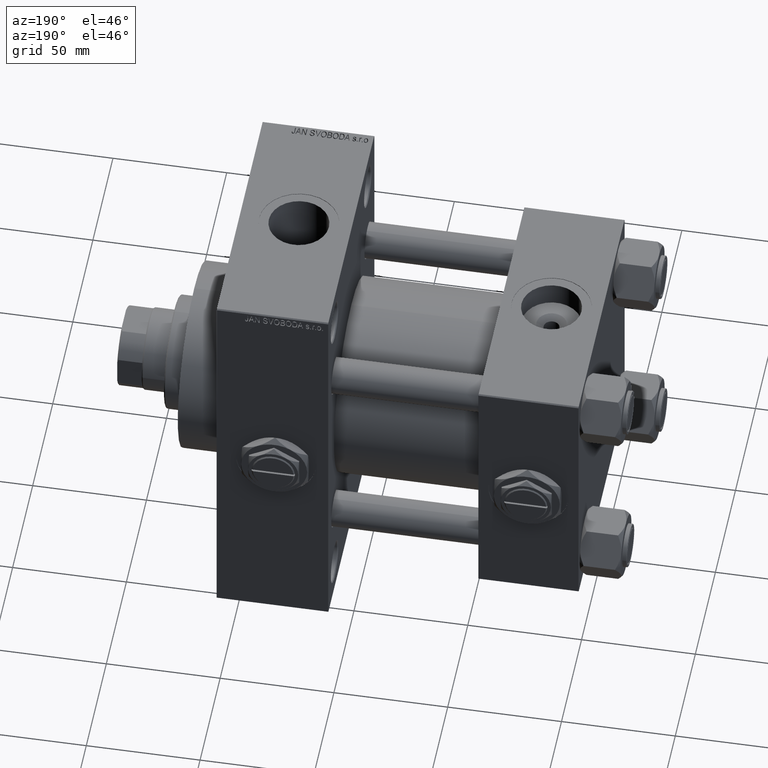
[diagram: clean part render]
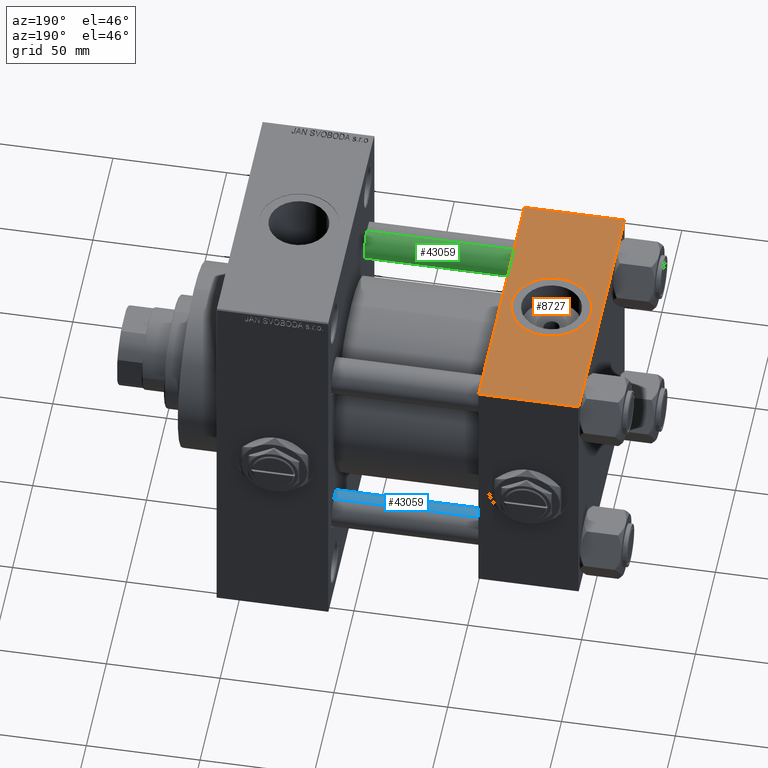
[diagram: same view with three faces highlighted in distinct colors, each labeled with its STEP entity id]
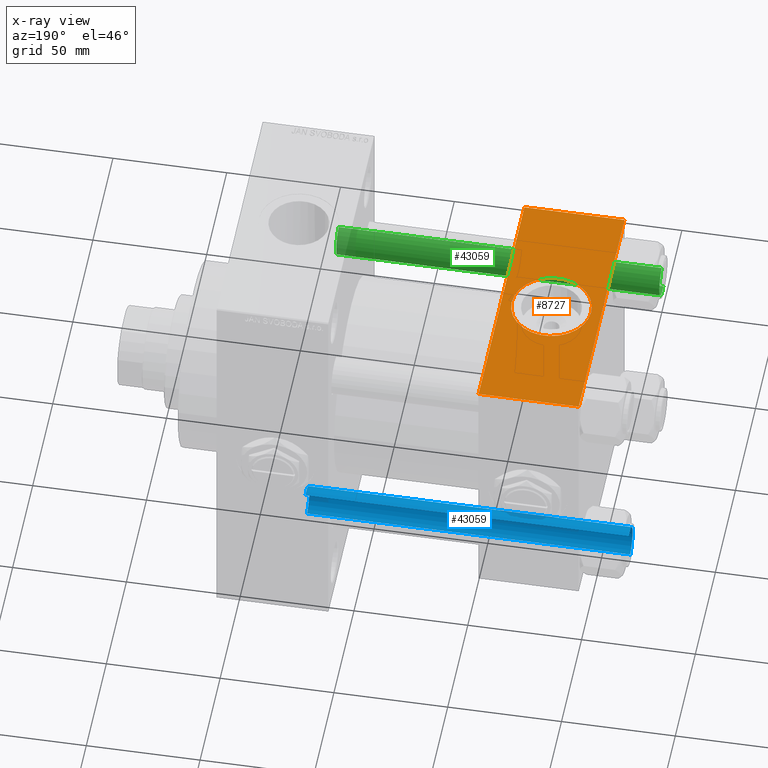
[diagram: x-ray of the same camera — body ghosted, the three highlighted faces saturated]
A machine part, auxiliary view with three faces highlighted in distinct colors.
The next image is the same camera in x-ray (body ghosted, the three faces saturated) — at least one of them is partly hidden behind the body in this view.
Their STEP definitions:

[orange] entity #8727 — the highlighted planar face has unit normal (0, 0, -1).
#2814 = CARTESIAN_POINT ( 'NONE',  ( 0.000000000000000000, 57.00000000000000711, 57.50000000000000711 ) ) ;
#3038 = CARTESIAN_POINT ( 'NONE',  ( 4.499999999999997335, -6.530485481376167224E-15, 57.50000000000000000 ) ) ;
#3817 = CARTESIAN_POINT ( 'NONE',  ( 39.50000000000000000, -8.673617379884035472E-15, 57.50000000000000000 ) ) ;
#3928 = LINE ( 'NONE', #7459, #7944 ) ;
#4700 = DIRECTION ( 'NONE',  ( 0.000000000000000000, 0.000000000000000000, 1.000000000000000000 ) ) ;
#4771 = EDGE_CURVE ( 'NONE', #10060, #28928, #17269, .T. ) ;
#5088 = ORIENTED_EDGE ( 'NONE', *, *, #4771, .T. ) ;
#6337 = VECTOR ( 'NONE', #10445, 1000.000000000000000 ) ;
#7459 = CARTESIAN_POINT ( 'NONE',  ( 44.00000000000000000, 57.49999999999999289, 57.50000000000000711 ) ) ;
#7944 = VECTOR ( 'NONE', #26603, 1000.000000000000000 ) ;
#8725 = CARTESIAN_POINT ( 'NONE',  ( 22.00000000000000000, -8.673617379884035472E-15, 57.50000000000000000 ) ) ;
#8727 = ADVANCED_FACE ( 'NONE', ( #35731, #28896 ), #39761, .F. ) ;
#8968 = EDGE_CURVE ( 'NONE', #24423, #31299, #3928, .T. ) ;
#9548 = AXIS2_PLACEMENT_3D ( 'NONE', #20342, #24381, #28643 ) ;
#9756 = EDGE_CURVE ( 'NONE', #40415, #33855, #22480, .T. ) ;
#10052 = EDGE_LOOP ( 'NONE', ( #12587, #35274 ) ) ;
#10060 = VERTEX_POINT ( 'NONE', #27320 ) ;
#10445 = DIRECTION ( 'NONE',  ( 0.000000000000000000, -1.000000000000000000, -1.206764157201257045E-16 ) ) ;
#10451 = CIRCLE ( 'NONE', #39433, 17.50000000000000000 ) ;
#12587 = ORIENTED_EDGE ( 'NONE', *, *, #9756, .F. ) ;
#12842 = ORIENTED_EDGE ( 'NONE', *, *, #30318, .T. ) ;
#14369 = LINE ( 'NONE', #2814, #33544 ) ;
#17269 = LINE ( 'NONE', #28863, #6337 ) ;
#18450 = CARTESIAN_POINT ( 'NONE',  ( 44.00000000000000000, -57.00000000000003553, 57.49999999999999289 ) ) ;
#19182 = DIRECTION ( 'NONE',  ( 1.000000000000000000, 0.000000000000000000, 0.000000000000000000 ) ) ;
#20342 = CARTESIAN_POINT ( 'NONE',  ( 44.00000000000000000, 57.49999999999999289, 57.50000000000000711 ) ) ;
#20683 = VECTOR ( 'NONE', #19182, 1000.000000000000000 ) ;
#21159 = ORIENTED_EDGE ( 'NONE', *, *, #34845, .T. ) ;
#22219 = DIRECTION ( 'NONE',  ( 0.000000000000000000, 0.000000000000000000, 1.000000000000000000 ) ) ;
#22480 = CIRCLE ( 'NONE', #24066, 17.50000000000000000 ) ;
#24066 = AXIS2_PLACEMENT_3D ( 'NONE', #8725, #4700, #24610 ) ;
#24381 = DIRECTION ( 'NONE',  ( 0.000000000000000000, 1.206764157201257045E-16, -1.000000000000000000 ) ) ;
#24384 = CARTESIAN_POINT ( 'NONE',  ( 44.00000000000000000, 57.00000000000000711, 57.50000000000000711 ) ) ;
#24423 = VERTEX_POINT ( 'NONE', #24384 ) ;
#24610 = DIRECTION ( 'NONE',  ( 1.000000000000000000, 0.000000000000000000, 0.000000000000000000 ) ) ;
#26603 = DIRECTION ( 'NONE',  ( 0.000000000000000000, -1.000000000000000000, -1.206764157201257045E-16 ) ) ;
#27320 = CARTESIAN_POINT ( 'NONE',  ( 0.000000000000000000, 57.00000000000000711, 57.50000000000000711 ) ) ;
#28643 = DIRECTION ( 'NONE',  ( 0.000000000000000000, 1.000000000000000000, 1.206764157201257045E-16 ) ) ;
#28863 = CARTESIAN_POINT ( 'NONE',  ( 0.000000000000000000, 57.49999999999999289, 57.50000000000000711 ) ) ;
#28896 = FACE_OUTER_BOUND ( 'NONE', #45581, .T. ) ;
#28928 = VERTEX_POINT ( 'NONE', #46545 ) ;
#30318 = EDGE_CURVE ( 'NONE', #24423, #10060, #14369, .T. ) ;
#31299 = VERTEX_POINT ( 'NONE', #37083 ) ;
#33544 = VECTOR ( 'NONE', #37817, 1000.000000000000000 ) ;
#33855 = VERTEX_POINT ( 'NONE', #3038 ) ;
#34845 = EDGE_CURVE ( 'NONE', #28928, #31299, #41161, .T. ) ;
#35274 = ORIENTED_EDGE ( 'NONE', *, *, #44987, .F. ) ;
#35731 = FACE_BOUND ( 'NONE', #10052, .T. ) ;
#37083 = CARTESIAN_POINT ( 'NONE',  ( 44.00000000000000000, -57.00000000000003553, 57.49999999999999289 ) ) ;
#37817 = DIRECTION ( 'NONE',  ( -1.000000000000000000, 0.000000000000000000, 0.000000000000000000 ) ) ;
#38332 = ORIENTED_EDGE ( 'NONE', *, *, #8968, .F. ) ;
#39433 = AXIS2_PLACEMENT_3D ( 'NONE', #45627, #22219, #49665 ) ;
#39761 = PLANE ( 'NONE',  #9548 ) ;
#40415 = VERTEX_POINT ( 'NONE', #3817 ) ;
#41161 = LINE ( 'NONE', #18450, #20683 ) ;
#44987 = EDGE_CURVE ( 'NONE', #33855, #40415, #10451, .T. ) ;
#45581 = EDGE_LOOP ( 'NONE', ( #5088, #21159, #38332, #12842 ) ) ;
#45627 = CARTESIAN_POINT ( 'NONE',  ( 22.00000000000000000, -8.673617379884035472E-15, 57.50000000000000000 ) ) ;
#46545 = CARTESIAN_POINT ( 'NONE',  ( 0.000000000000000000, -57.00000000000003553, 57.49999999999999289 ) ) ;
#49665 = DIRECTION ( 'NONE',  ( 1.000000000000000000, 0.000000000000000000, 0.000000000000000000 ) ) ;

[blue] entity #43059 — the highlighted cylindrical surface (edge-blend (fillet) strip) has radius 8 mm, axis along (1, -0, 0).
#550 = ORIENTED_EDGE ( 'NONE', *, *, #32242, .F. ) ;
#738 = EDGE_CURVE ( 'NONE', #10352, #11782, #38502, .T. ) ;
#1227 = CARTESIAN_POINT ( 'NONE',  ( 0.000000000000000000, 0.000000000000000000, 142.4999999999999716 ) ) ;
#1728 = DIRECTION ( 'NONE',  ( 1.000000000000000000, 0.000000000000000000, 0.000000000000000000 ) ) ;
#2900 = VECTOR ( 'NONE', #26602, 1000.000000000000000 ) ;
#2925 = DIRECTION ( 'NONE',  ( -0.000000000000000000, -0.000000000000000000, -1.000000000000000000 ) ) ;
#3173 = DIRECTION ( 'NONE',  ( -1.000000000000000000, 0.000000000000000000, 0.000000000000000000 ) ) ;
#7553 = VERTEX_POINT ( 'NONE', #13812 ) ;
#9185 = DIRECTION ( 'NONE',  ( -0.000000000000000000, -0.000000000000000000, 1.000000000000000000 ) ) ;
#10281 = DIRECTION ( 'NONE',  ( -0.000000000000000000, -0.000000000000000000, -1.000000000000000000 ) ) ;
#10352 = VERTEX_POINT ( 'NONE', #19068 ) ;
#10777 = CIRCLE ( 'NONE', #20459, 8.000000000000000000 ) ;
#11219 = CARTESIAN_POINT ( 'NONE',  ( 8.000000000000000000, 9.797174393178825657E-16, 143.0000000000000000 ) ) ;
#11782 = VERTEX_POINT ( 'NONE', #39440 ) ;
#12175 = VECTOR ( 'NONE', #10281, 1000.000000000000000 ) ;
#13812 = CARTESIAN_POINT ( 'NONE',  ( 8.000000000000000000, 9.797174393178825657E-16, 142.4999999999999716 ) ) ;
#16727 = ORIENTED_EDGE ( 'NONE', *, *, #738, .T. ) ;
#17516 = CYLINDRICAL_SURFACE ( 'NONE', #26616, 8.000000000000000000 ) ;
#19068 = CARTESIAN_POINT ( 'NONE',  ( -8.000000000000000000, 0.000000000000000000, 0.4999999999999726885 ) ) ;
#20459 = AXIS2_PLACEMENT_3D ( 'NONE', #1227, #40503, #1728 ) ;
#21471 = VERTEX_POINT ( 'NONE', #40494 ) ;
#21560 = FACE_OUTER_BOUND ( 'NONE', #33351, .T. ) ;
#24418 = EDGE_CURVE ( 'NONE', #7553, #21471, #10777, .T. ) ;
#26602 = DIRECTION ( 'NONE',  ( -0.000000000000000000, -0.000000000000000000, -1.000000000000000000 ) ) ;
#26616 = AXIS2_PLACEMENT_3D ( 'NONE', #29371, #2925, #3173 ) ;
#29371 = CARTESIAN_POINT ( 'NONE',  ( 0.000000000000000000, 0.000000000000000000, 143.0000000000000000 ) ) ;
#29450 = LINE ( 'NONE', #49090, #12175 ) ;
#29736 = ORIENTED_EDGE ( 'NONE', *, *, #48667, .T. ) ;
#32242 = EDGE_CURVE ( 'NONE', #7553, #11782, #42964, .T. ) ;
#32838 = AXIS2_PLACEMENT_3D ( 'NONE', #48475, #9185, #44201 ) ;
#33351 = EDGE_LOOP ( 'NONE', ( #550, #49228, #29736, #16727 ) ) ;
#38502 = CIRCLE ( 'NONE', #32838, 8.000000000000000000 ) ;
#39440 = CARTESIAN_POINT ( 'NONE',  ( 8.000000000000000000, 9.797174393178825657E-16, 0.4999999999999726885 ) ) ;
#40494 = CARTESIAN_POINT ( 'NONE',  ( -8.000000000000000000, 0.000000000000000000, 142.4999999999999716 ) ) ;
#40503 = DIRECTION ( 'NONE',  ( 0.000000000000000000, 0.000000000000000000, -1.000000000000000000 ) ) ;
#42964 = LINE ( 'NONE', #11219, #2900 ) ;
#43059 = ADVANCED_FACE ( 'NONE', ( #21560 ), #17516, .T. ) ;
#44201 = DIRECTION ( 'NONE',  ( 1.000000000000000000, 0.000000000000000000, 0.000000000000000000 ) ) ;
#48475 = CARTESIAN_POINT ( 'NONE',  ( 0.000000000000000000, 0.000000000000000000, 0.4999999999999726885 ) ) ;
#48667 = EDGE_CURVE ( 'NONE', #21471, #10352, #29450, .T. ) ;
#49090 = CARTESIAN_POINT ( 'NONE',  ( -8.000000000000000000, 0.000000000000000000, 143.0000000000000000 ) ) ;
#49228 = ORIENTED_EDGE ( 'NONE', *, *, #24418, .T. ) ;

[green] entity #43059 — the highlighted cylindrical surface (edge-blend (fillet) strip) has radius 8 mm, axis along (1, 0, 0).
#550 = ORIENTED_EDGE ( 'NONE', *, *, #32242, .F. ) ;
#738 = EDGE_CURVE ( 'NONE', #10352, #11782, #38502, .T. ) ;
#1227 = CARTESIAN_POINT ( 'NONE',  ( 0.000000000000000000, 0.000000000000000000, 142.4999999999999716 ) ) ;
#1728 = DIRECTION ( 'NONE',  ( 1.000000000000000000, 0.000000000000000000, 0.000000000000000000 ) ) ;
#2900 = VECTOR ( 'NONE', #26602, 1000.000000000000000 ) ;
#2925 = DIRECTION ( 'NONE',  ( -0.000000000000000000, -0.000000000000000000, -1.000000000000000000 ) ) ;
#3173 = DIRECTION ( 'NONE',  ( -1.000000000000000000, 0.000000000000000000, 0.000000000000000000 ) ) ;
#7553 = VERTEX_POINT ( 'NONE', #13812 ) ;
#9185 = DIRECTION ( 'NONE',  ( -0.000000000000000000, -0.000000000000000000, 1.000000000000000000 ) ) ;
#10281 = DIRECTION ( 'NONE',  ( -0.000000000000000000, -0.000000000000000000, -1.000000000000000000 ) ) ;
#10352 = VERTEX_POINT ( 'NONE', #19068 ) ;
#10777 = CIRCLE ( 'NONE', #20459, 8.000000000000000000 ) ;
#11219 = CARTESIAN_POINT ( 'NONE',  ( 8.000000000000000000, 9.797174393178825657E-16, 143.0000000000000000 ) ) ;
#11782 = VERTEX_POINT ( 'NONE', #39440 ) ;
#12175 = VECTOR ( 'NONE', #10281, 1000.000000000000000 ) ;
#13812 = CARTESIAN_POINT ( 'NONE',  ( 8.000000000000000000, 9.797174393178825657E-16, 142.4999999999999716 ) ) ;
#16727 = ORIENTED_EDGE ( 'NONE', *, *, #738, .T. ) ;
#17516 = CYLINDRICAL_SURFACE ( 'NONE', #26616, 8.000000000000000000 ) ;
#19068 = CARTESIAN_POINT ( 'NONE',  ( -8.000000000000000000, 0.000000000000000000, 0.4999999999999726885 ) ) ;
#20459 = AXIS2_PLACEMENT_3D ( 'NONE', #1227, #40503, #1728 ) ;
#21471 = VERTEX_POINT ( 'NONE', #40494 ) ;
#21560 = FACE_OUTER_BOUND ( 'NONE', #33351, .T. ) ;
#24418 = EDGE_CURVE ( 'NONE', #7553, #21471, #10777, .T. ) ;
#26602 = DIRECTION ( 'NONE',  ( -0.000000000000000000, -0.000000000000000000, -1.000000000000000000 ) ) ;
#26616 = AXIS2_PLACEMENT_3D ( 'NONE', #29371, #2925, #3173 ) ;
#29371 = CARTESIAN_POINT ( 'NONE',  ( 0.000000000000000000, 0.000000000000000000, 143.0000000000000000 ) ) ;
#29450 = LINE ( 'NONE', #49090, #12175 ) ;
#29736 = ORIENTED_EDGE ( 'NONE', *, *, #48667, .T. ) ;
#32242 = EDGE_CURVE ( 'NONE', #7553, #11782, #42964, .T. ) ;
#32838 = AXIS2_PLACEMENT_3D ( 'NONE', #48475, #9185, #44201 ) ;
#33351 = EDGE_LOOP ( 'NONE', ( #550, #49228, #29736, #16727 ) ) ;
#38502 = CIRCLE ( 'NONE', #32838, 8.000000000000000000 ) ;
#39440 = CARTESIAN_POINT ( 'NONE',  ( 8.000000000000000000, 9.797174393178825657E-16, 0.4999999999999726885 ) ) ;
#40494 = CARTESIAN_POINT ( 'NONE',  ( -8.000000000000000000, 0.000000000000000000, 142.4999999999999716 ) ) ;
#40503 = DIRECTION ( 'NONE',  ( 0.000000000000000000, 0.000000000000000000, -1.000000000000000000 ) ) ;
#42964 = LINE ( 'NONE', #11219, #2900 ) ;
#43059 = ADVANCED_FACE ( 'NONE', ( #21560 ), #17516, .T. ) ;
#44201 = DIRECTION ( 'NONE',  ( 1.000000000000000000, 0.000000000000000000, 0.000000000000000000 ) ) ;
#48475 = CARTESIAN_POINT ( 'NONE',  ( 0.000000000000000000, 0.000000000000000000, 0.4999999999999726885 ) ) ;
#48667 = EDGE_CURVE ( 'NONE', #21471, #10352, #29450, .T. ) ;
#49090 = CARTESIAN_POINT ( 'NONE',  ( -8.000000000000000000, 0.000000000000000000, 143.0000000000000000 ) ) ;
#49228 = ORIENTED_EDGE ( 'NONE', *, *, #24418, .T. ) ;